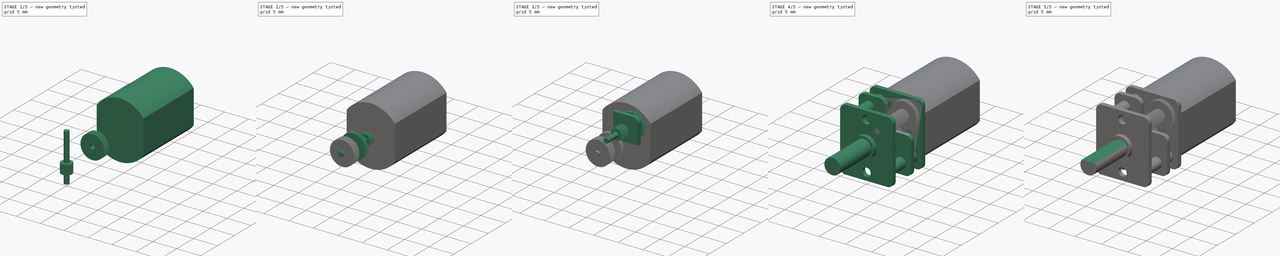
[diagram: build sequence overview — one tinted view per stage of 5, left to right]
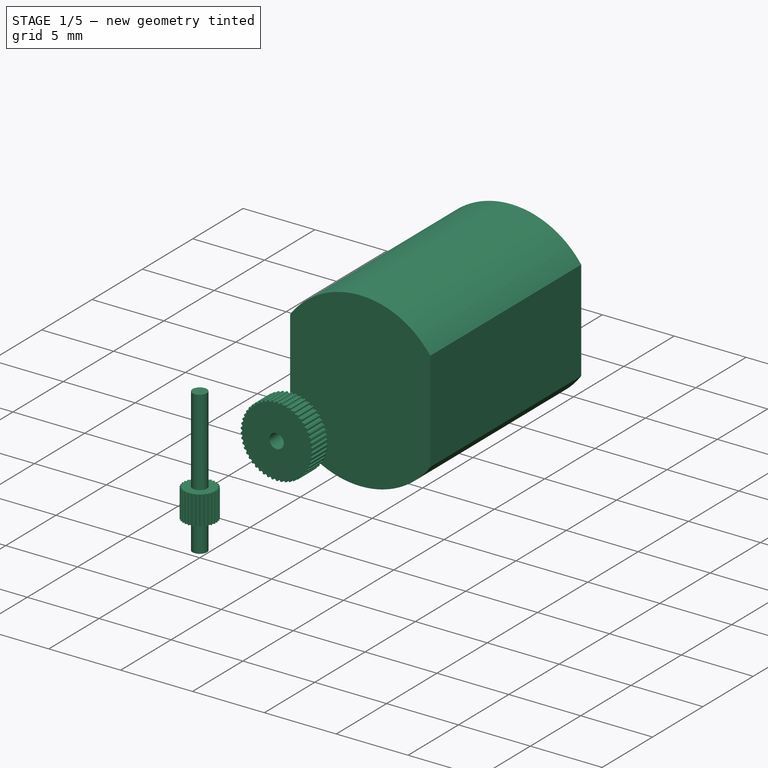
[diagram: stage 1 of 5 — iso view after this stage's code; geometry added in this stage tinted green]
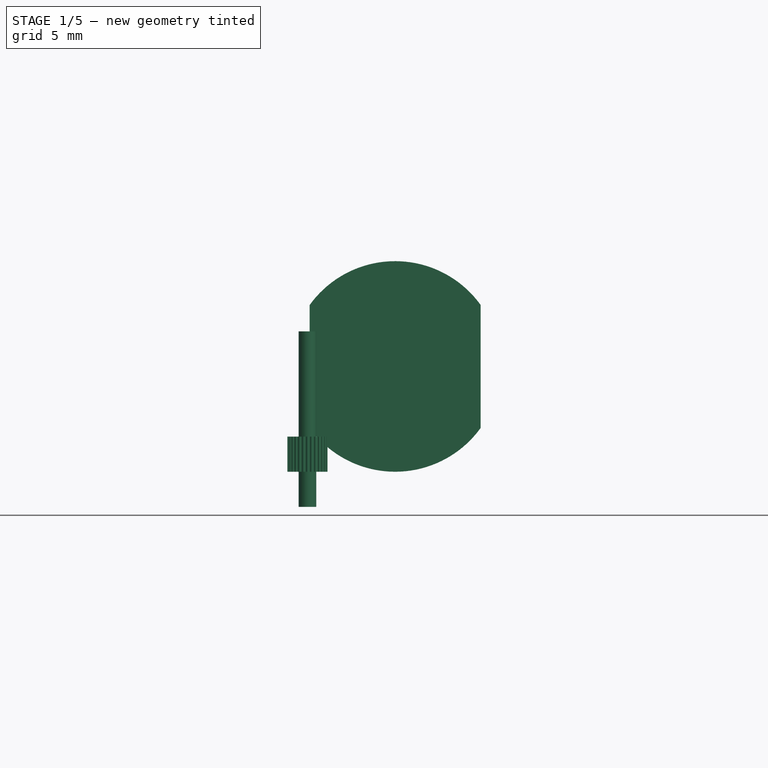
[diagram: stage 1 of 5 — front view after this stage's code; geometry added in this stage tinted green]
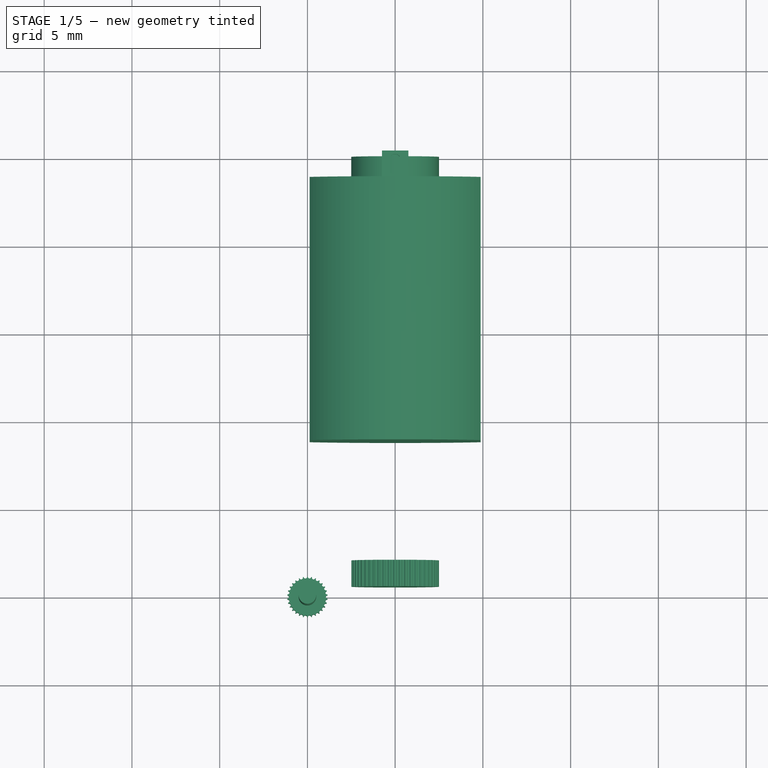
[diagram: stage 1 of 5 — top view after this stage's code; geometry added in this stage tinted green]
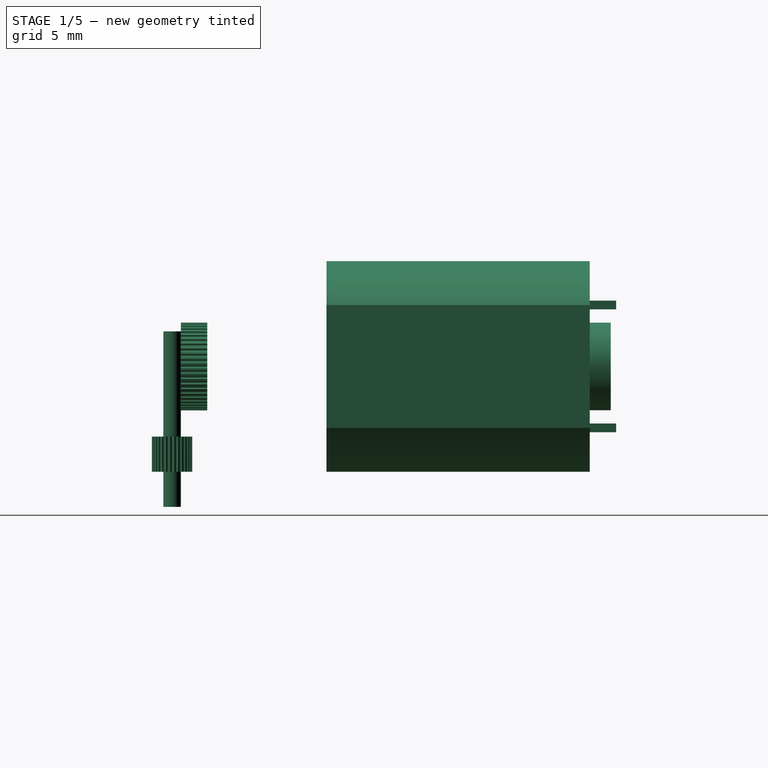
[diagram: stage 1 of 5 — right view after this stage's code; geometry added in this stage tinted green]
FCSTD DOCUMENT  (FreeCAD 0.14R3700 (Git))
Label: MotorMiniatura
License: CC-BY 3.0
LicenseURL: http://creativecommons.org/licenses/by/3.0/
objects: Part::Cylinder×30, Part::Cut×17, Sketcher::SketchObject×10, Part::MultiFuse×8, Part::FeaturePython×8, PartDesign::Pocket×6, Part::Fillet×5, Part::Box×4, PartDesign::Pad×4
note: 102 computed .brp shape members not serialized (recipe doc carries the construction recipe); baked Part::Feature solids carry a one-line shape summary decoded from their .brp

FEATURE [Part::Cylinder] Cylinder021  label="Cilindro021"
  Angle = 360
  Height = 2
  Radius = 1.15
FEATURE [Part::Cylinder] Cylinder022  label="Cilindro022"
  Angle = 360
  Height = 10
  Placement = pos=(1.15,0,0) rot=(0,0,1;0rad)
  Radius = 0.1
FEATURE [Part::FeaturePython] Array004  # Draft array (typed FeaturePython)
  Angle = 360
  ArrayType = 1
  Axis = (0,0,1)
  Base = -> Cylinder022
  Center = (0,0,0)
  IntervalX = (1,0,0)
  IntervalY = (0,1,0)
  IntervalZ = (0,0,1)
  NumberPolar = 30
  NumberX = 2
  NumberY = 2
  NumberZ = 1
FEATURE [Part::Cut] Cut009
  Base = -> Cylinder021
  Tool = -> Array004
FEATURE [Part::Cylinder] Cylinder023  label="Cilindro023"
  Angle = 360
  Height = 10
  Placement = pos=(0,0,-2) rot=(0,0,1;0rad)
  Radius = 0.5
FEATURE [Part::Cylinder] Cylinder024  label="Cilindro024"
  Angle = 360
  Height = 1.5
  Radius = 2.5
FEATURE [Part::Cylinder] Cylinder025  label="Cilindro025"
  Angle = 360
  Height = 10
  Placement = pos=(2.5,0,-2) rot=(0,0,1;0rad)
  Radius = 0.1
FEATURE [Part::FeaturePython] Array005  # Draft array (typed FeaturePython)
  Angle = 360
  ArrayType = 1
  Axis = (0,0,1)
  Base = -> Cylinder025
  Center = (0,0,0)
  IntervalX = (1,0,0)
  IntervalY = (0,1,0)
  IntervalZ = (0,0,1)
  NumberPolar = 50
  NumberX = 2
  NumberY = 2
  NumberZ = 1
FEATURE [Part::Cut] Cut011
  Base = -> Cylinder024
  Tool = -> Array005
FEATURE [Part::Cylinder] Cylinder026  label="Cilindro026"
  Angle = 360
  Height = 10
  Placement = pos=(0,0,-3) rot=(0,0,1;0rad)
  Radius = 0.5
FEATURE [Part::Cut] Cut012
  Base = -> Cut011
  Placement = pos=(5,2,6) rot=(1,0,0;1.5708rad)
  Tool = -> Cylinder026
FEATURE [Sketcher::SketchObject] Sketch005
  Placement = pos=(5,23.8,6) rot=(1,0,0;1.5708rad)
  sketch-geometry (4):
    g0: ArcOfCircle CenterX=0 CenterY=0 CenterZ=0 NormalX=0 NormalY=0 NormalZ=1 Radius=6 StartAngle=0.622827 EndAngle=2.51877
    g1: LineSegment StartX=4.8734 StartY=3.5 StartZ=0 EndX=4.8734 EndY=-3.5 EndZ=0
    g2: LineSegment StartX=-4.8734 StartY=-3.5 StartZ=0 EndX=-4.8734 EndY=3.5 EndZ=0
    g3: ArcOfCircle CenterX=0 CenterY=0 CenterZ=0 NormalX=0 NormalY=0 NormalZ=1 Radius=6 StartAngle=3.76442 EndAngle=5.66036
  constraints (15):
    c: Coincident(g0,g-1)
    c: Radius(g0) = 6
    c: Vertical(g1)
    c: Vertical(g2)
    c: Coincident(g0,g1)
    c: Equal(g0,g3)
    c: Coincident(g0,g2)
    c: Coincident(g0,g3)
    c: PointOnObject(g2,g3)
    c: Coincident(g1,g3)
    c: Equal(g1,g2)
    c: DistanceY(g1) = -7
    c: Symmetric(g0,g1,g-1)
    c: Symmetric(g0,g0,g-2)
    c: Coincident(g3,g2)
FEATURE [PartDesign::Pad] Pad001
  Length = 15
  Length2 = 100
  Placement = pos=(5,23.8,6) rot=(1,0,0;1.5708rad)
  Sketch = -> Sketch005
  Type = 0
FEATURE [Sketcher::SketchObject] Sketch006
  Placement = pos=(5,23.8,6) rot=(-1,0,0;1.5708rad)
  Support = -> Pad001 [Face5]
  sketch-geometry (1):
    g0: Circle CenterX=0 CenterY=0 CenterZ=0 NormalX=0 NormalY=0 NormalZ=1 Radius=2.5
  constraints (2):
    c: Coincident(g0,g-1)
    c: Radius(g0) = 2.5
FEATURE [PartDesign::Pad] Pad002
  Length = 1.2
  Length2 = 100
  Placement = pos=(5,23.8,6) rot=(1,0,0;1.5708rad)
  Sketch = -> Sketch006
  Type = 0
FEATURE [Sketcher::SketchObject] Sketch007
  ExternalGeometry = -> [Pad002]
  Placement = pos=(5,23.8,6) rot=(-1,0,0;1.5708rad)
  Support = -> Pad002 [Face4]
  sketch-geometry (10):
    g0: LineSegment StartX=0.75 StartY=-3.75 StartZ=0 EndX=-0.75 EndY=-3.75 EndZ=0
    g1: LineSegment StartX=-0.75 StartY=-3.75 StartZ=0 EndX=-0.75 EndY=-3.25 EndZ=0
    g2: LineSegment StartX=-0.75 StartY=-3.25 StartZ=0 EndX=0.75 EndY=-3.25 EndZ=0
    g3: LineSegment StartX=0.75 StartY=-3.25 StartZ=0 EndX=0.75 EndY=-3.75 EndZ=0
    g4: LineSegment [constr] StartX=4.8734 StartY=-3.5 StartZ=0 EndX=-4.8734 EndY=-3.5 EndZ=0
    g5: LineSegment [constr] StartX=-4.8734 StartY=3.5 StartZ=0 EndX=4.8734 EndY=3.5 EndZ=0
    g6: LineSegment StartX=0.75 StartY=3.25 StartZ=0 EndX=-0.75 EndY=3.25 EndZ=0
    g7: LineSegment StartX=-0.75 StartY=3.25 StartZ=0 EndX=-0.75 EndY=3.75 EndZ=0
    g8: LineSegment StartX=-0.75 StartY=3.75 StartZ=0 EndX=0.75 EndY=3.75 EndZ=0
    g9: LineSegment StartX=0.75 StartY=3.75 StartZ=0 EndX=0.75 EndY=3.25 EndZ=0
  constraints (28):
    c: Coincident(g0,g1)
    c: Coincident(g1,g2)
    c: Coincident(g2,g3)
    c: Coincident(g3,g0)
    c: Horizontal(g0)
    c: Horizontal(g2)
    c: Vertical(g1)
    c: Vertical(g3)
    c: DistanceX(g0) = -1.5
    c: DistanceY(g3) = -0.5
    c: Coincident(g4,g-3)
    c: Coincident(g4,g-4)
    c: Symmetric(g1,g0,g4)
    c: DistanceX(g-1,g0) = 0.75
    c: Coincident(g5,g-4)
    c: Coincident(g5,g-3)
    c: Coincident(g6,g7)
    c: Coincident(g7,g8)
    c: Coincident(g8,g9)
    c: Coincident(g9,g6)
    c: Horizontal(g6)
    c: Horizontal(g8)
    c: Vertical(g7)
    c: Vertical(g9)
    c: DistanceX(g8) = 1.5
    c: DistanceY(g7) = 0.5
    c: Symmetric(g8,g6,g5)
    c: DistanceX(g-1,g6) = 0.75
FEATURE [PartDesign::Pad] Pad003
  Length = 1.5
  Length2 = 100
  Placement = pos=(5,23.8,6) rot=(1,0,0;1.5708rad)
  Sketch = -> Sketch007
  Type = 0
FEATURE [Sketcher::SketchObject] Sketch008
  ExternalGeometry = -> [Pad003]
  Placement = pos=(5,23.8,2.25) rot=(1,0,0;3.14159rad)
  Support = -> Pad003 [Face9]
  sketch-geometry (4):
    g0: ArcOfCircle CenterX=0 CenterY=-0.399988 CenterZ=0 NormalX=0 NormalY=0 NormalZ=1 Radius=0.3 StartAngle=6.28316 EndAngle=9.42478
    g1: ArcOfCircle CenterX=0 CenterY=-1 CenterZ=0 NormalX=0 NormalY=0 NormalZ=1 Radius=0.3 StartAngle=3.14159 EndAngle=6.28321
    g2: LineSegment StartX=-0.3 StartY=-0.399988 StartZ=0 EndX=-0.3 EndY=-1 EndZ=0
    g3: LineSegment StartX=0.3 StartY=-0.399994 StartZ=0 EndX=0.3 EndY=-0.999994 EndZ=0
  constraints (14):
    c: Tangent(g0,g2)
    c: Tangent(g0,g3)
    c: Tangent(g1,g2)
    c: Tangent(g1,g3)
    c: Coincident(g0,g3)
    c: Coincident(g0,g2)
    c: Coincident(g2,g1)
    c: Coincident(g3,g1)
    c: Vertical(g2)
    c: Equal(g0,g1)
    c: DistanceX(g1,g1) = 0.6
    c: DistanceY(g1,g-3) = -0.5
    c: DistanceX(g-1,g1) = -0.3
    c: DistanceY(g3) = -0.6
FEATURE [PartDesign::Pocket] Pocket005
  Length = 1
  Placement = pos=(5,23.8,6) rot=(1,0,0;1.5708rad)
  Sketch = -> Sketch008
  Type = 0
FEATURE [Sketcher::SketchObject] Sketch009
  ExternalGeometry = -> [Pocket005]
  Placement = pos=(5,23.8,9.75) rot=(0,0,1;3.14159rad)
  Support = -> Pocket005 [Face15]
  sketch-geometry (4):
    g0: ArcOfCircle CenterX=-1e-12 CenterY=-0.399997 CenterZ=0 NormalX=0 NormalY=0 NormalZ=1 Radius=0.3 StartAngle=3.6196e-08 EndAngle=3.1416
    g1: ArcOfCircle CenterX=0 CenterY=-0.999997 CenterZ=0 NormalX=0 NormalY=0 NormalZ=1 Radius=0.3 StartAngle=3.1416 EndAngle=6.28319
    g2: LineSegment StartX=-0.3 StartY=-0.4 StartZ=0 EndX=-0.3 EndY=-1 EndZ=0
    g3: LineSegment StartX=0.3 StartY=-0.399997 StartZ=0 EndX=0.3 EndY=-0.999997 EndZ=0
  constraints (14):
    c: Tangent(g0,g3)
    c: Tangent(g1,g2)
    c: Tangent(g1,g3)
    c: Coincident(g0,g3)
    c: Coincident(g0,g2)
    c: Coincident(g2,g1)
    c: Coincident(g3,g1)
    c: Vertical(g2)
    c: Equal(g0,g1)
    c: DistanceY(g3) = -0.6
    c: DistanceX(g1,g1) = 0.6
    c: DistanceX(g-1,g1) = -0.3
    c: DistanceY(g1,g-3) = -0.5
    c: Equal(g2,g3)
FEATURE [PartDesign::Pocket] Pocket006
  Length = 1
  Placement = pos=(5,23.8,6) rot=(1,0,0;1.5708rad)
  Sketch = -> Sketch009
  Type = 0
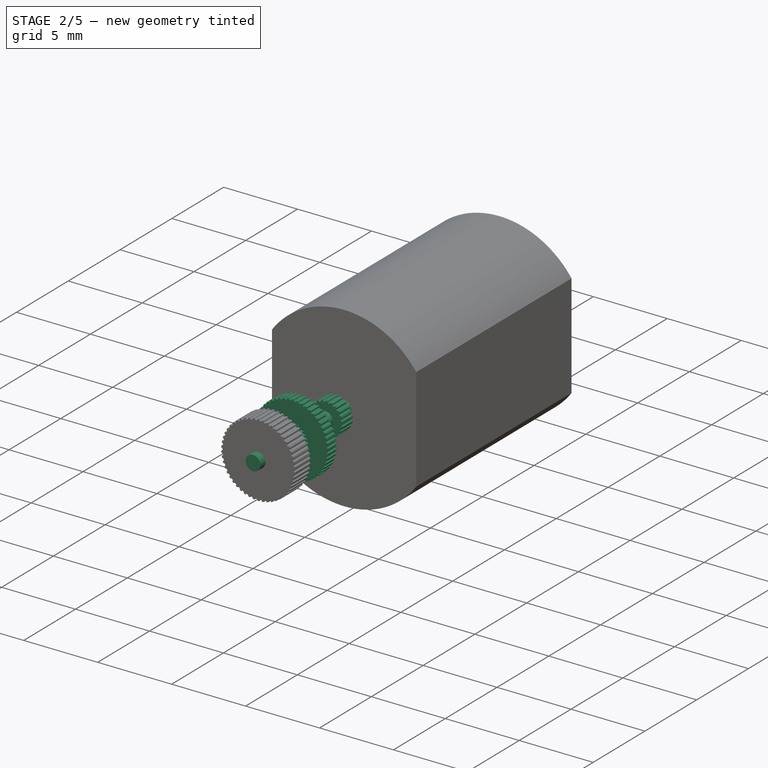
[diagram: stage 2 of 5 — iso view after this stage's code; geometry added in this stage tinted green]
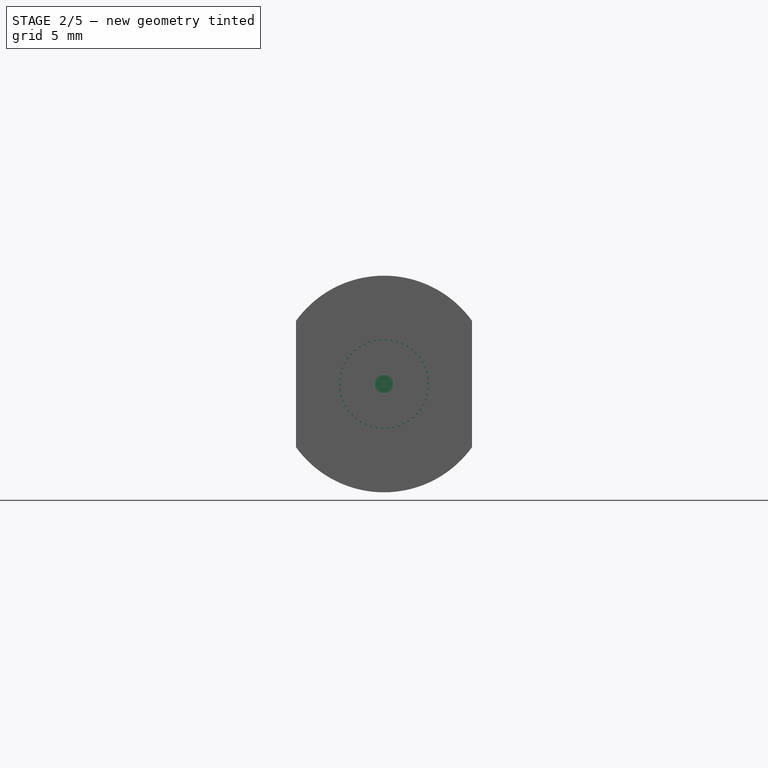
[diagram: stage 2 of 5 — front view after this stage's code; geometry added in this stage tinted green]
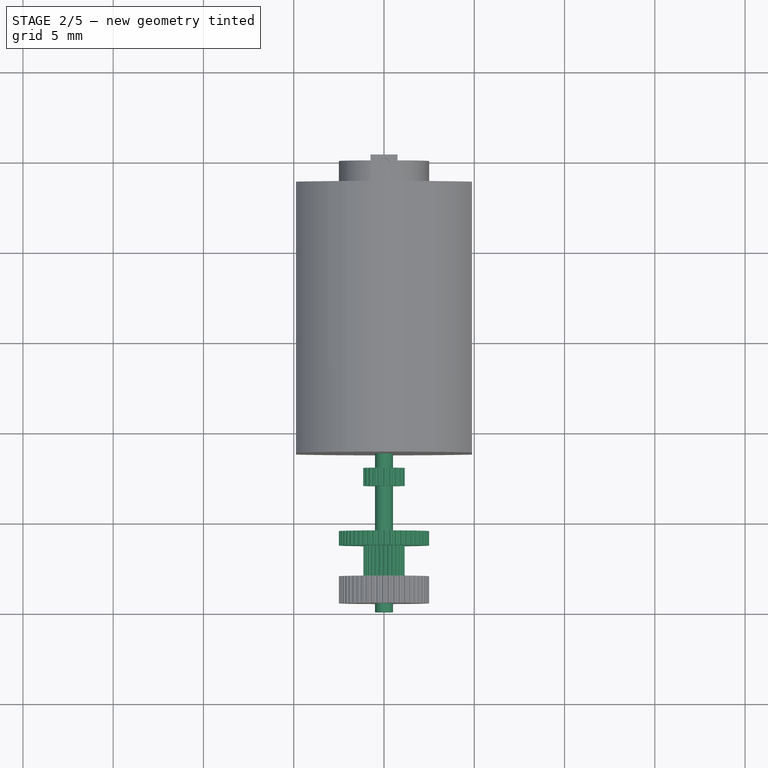
[diagram: stage 2 of 5 — top view after this stage's code; geometry added in this stage tinted green]
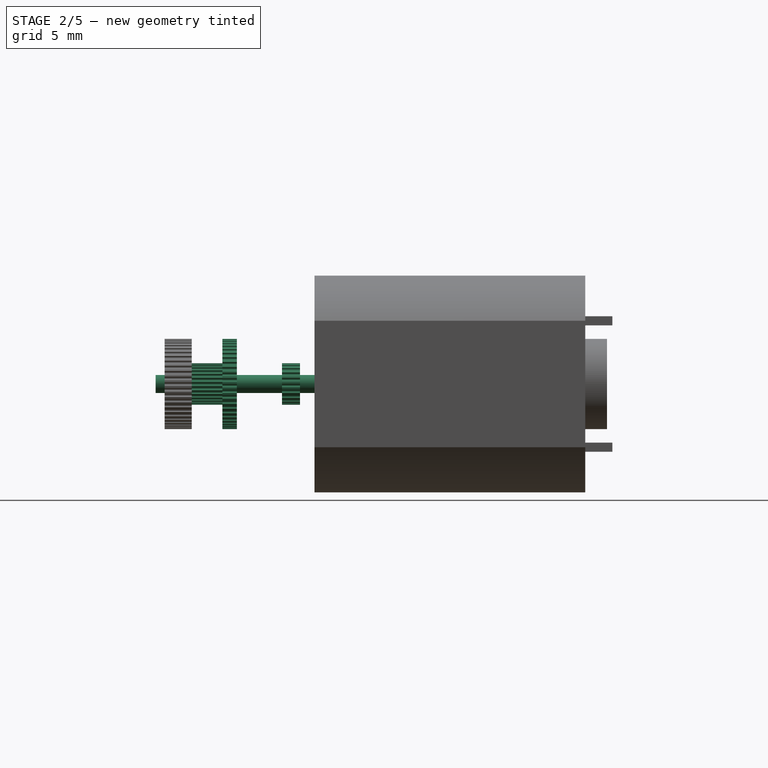
[diagram: stage 2 of 5 — right view after this stage's code; geometry added in this stage tinted green]
FEATURE [Part::Cylinder] Cylinder014  label="Cilindro014"
  Angle = 360
  Height = 8.8
  Placement = pos=(5,8.8,6) rot=(1,0,0;1.5708rad)
  Radius = 0.5
FEATURE [Part::Cylinder] Cylinder015  label="Cilindro015"
  Angle = 360
  Height = 1
  Radius = 1.15
FEATURE [Part::Cylinder] Cylinder016  label="Cilindro016"
  Angle = 360
  Height = 2
  Placement = pos=(1.15,0,0) rot=(0,0,1;0.174533rad)
  Radius = 0.1
FEATURE [Part::FeaturePython] Array002  # Draft array (typed FeaturePython)
  Angle = 360
  ArrayType = 1
  Axis = (0,0,1)
  Base = -> Cylinder016
  Center = (0,0,0)
  IntervalX = (1,0,0)
  IntervalY = (0,1,0)
  IntervalZ = (0,0,1)
  NumberPolar = 22
  NumberX = 2
  NumberY = 2
  NumberZ = 1
FEATURE [Part::Cut] Cut005
  Base = -> Cylinder015
  Tool = -> Array002
FEATURE [Part::Cylinder] Cylinder017  label="Cilindro017"
  Angle = 360
  Height = 10
  Placement = pos=(0,0,-3) rot=(0,0,1;0rad)
  Radius = 0.5
FEATURE [Part::Cut] Cut006
  Base = -> Cut005
  Placement = pos=(5,8,6) rot=(0.998783,0.034878,-0.034878;1.57201rad)
  Tool = -> Cylinder017
FEATURE [Part::MultiFuse] Fusion003  label="engranaje02"
  Shapes = -> [Cut006,Cylinder014]
FEATURE [Part::Cylinder] Cylinder018  label="Cilindro018"
  Angle = 360
  Height = 0.8
  Radius = 2.5
FEATURE [Part::Cylinder] Cylinder019  label="Cilindro019"
  Angle = 360
  Height = 5
  Placement = pos=(2.5,0,0) rot=(0,0,1;0rad)
  Radius = 0.1
FEATURE [Part::FeaturePython] Array003  # Draft array (typed FeaturePython)
  Angle = 360
  ArrayType = 1
  Axis = (0,0,1)
  Base = -> Cylinder019
  Center = (0,0,0)
  IntervalX = (1,0,0)
  IntervalY = (0,1,0)
  IntervalZ = (0,0,1)
  NumberPolar = 50
  NumberX = 2
  NumberY = 2
  NumberZ = 1
FEATURE [Part::Cut] Cut007
  Base = -> Cylinder018
  Tool = -> Array003
FEATURE [Part::Cylinder] Cylinder020  label="Cilindro020"
  Angle = 360
  Height = 10
  Placement = pos=(0,0,-3) rot=(0,0,1;0rad)
  Radius = 0.5
FEATURE [Part::Cut] Cut008
  Base = -> Cut007
  Placement = pos=(5,4.5,6) rot=(0.999695,0.01745,-0.01745;1.5711rad)
  Tool = -> Cylinder020
FEATURE [Part::Cut] Cut010
  Base = -> Cut009
  Placement = pos=(5,4,6) rot=(1,0,0;1.5708rad)
  Tool = -> Cylinder023
FEATURE [Part::MultiFuse] Fusion004
  Shapes = -> [Cut008,Cut010]
FEATURE [Part::MultiFuse] Fusion005  label="engranaje03"
  Shapes = -> [Fusion004,Cut012]
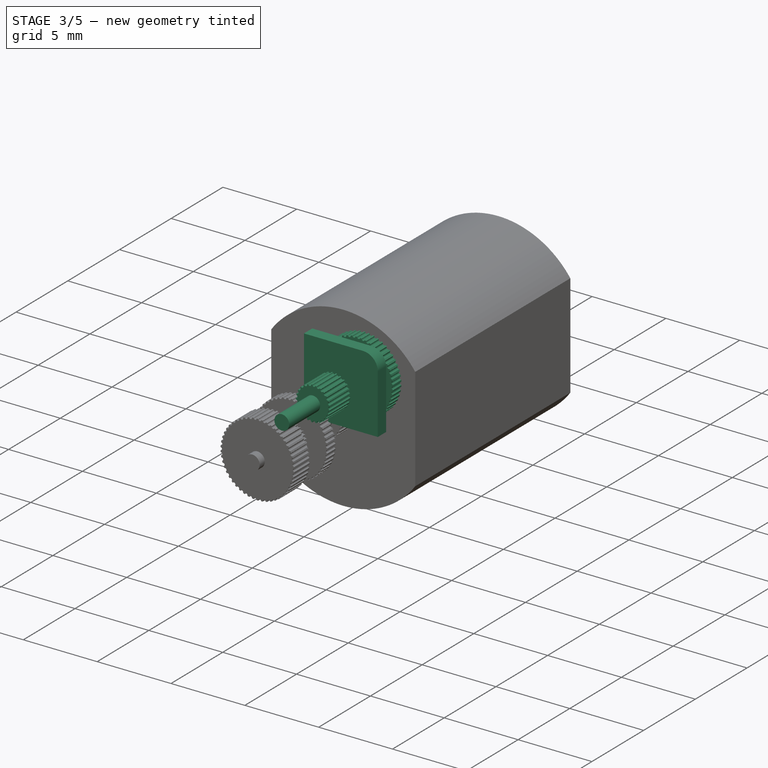
[diagram: stage 3 of 5 — iso view after this stage's code; geometry added in this stage tinted green]
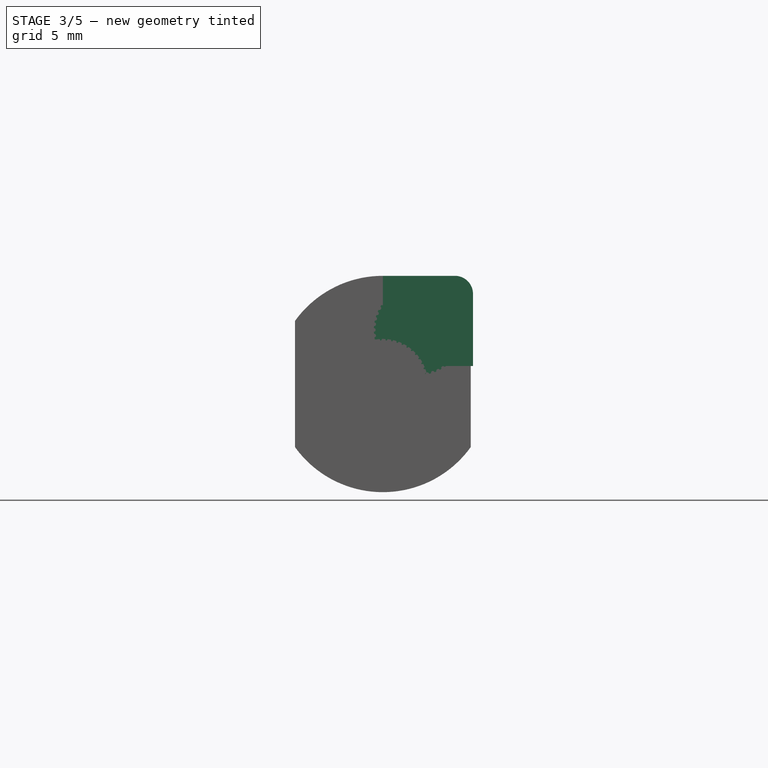
[diagram: stage 3 of 5 — front view after this stage's code; geometry added in this stage tinted green]
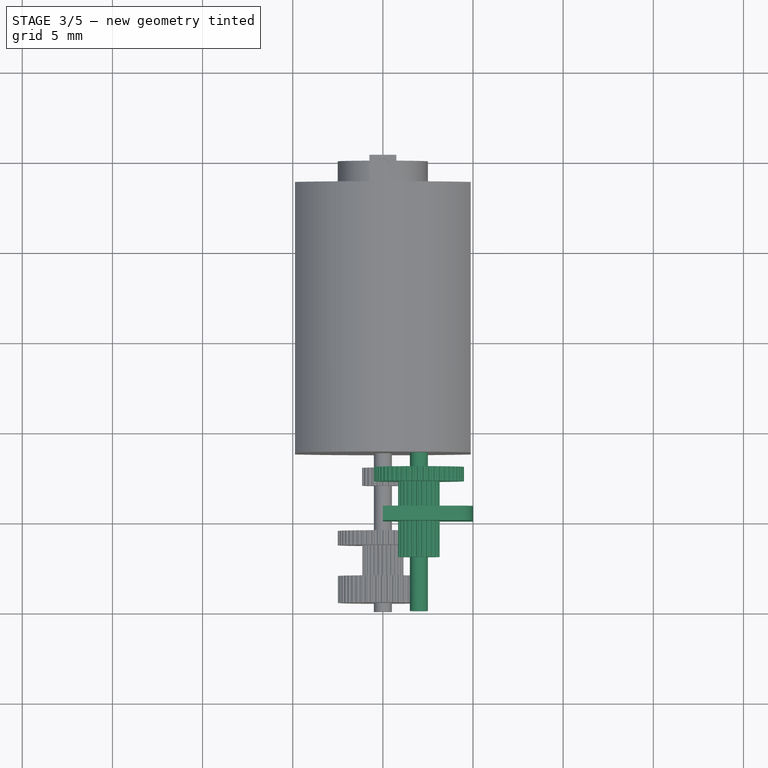
[diagram: stage 3 of 5 — top view after this stage's code; geometry added in this stage tinted green]
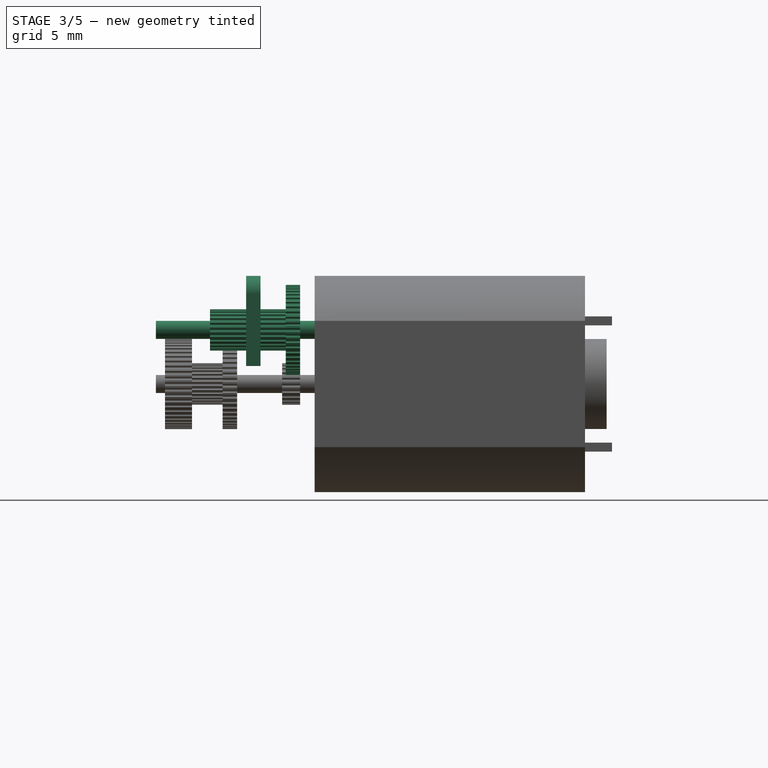
[diagram: stage 3 of 5 — right view after this stage's code; geometry added in this stage tinted green]
FEATURE [Part::Cylinder] Cylinder008  label="Cilindro008"
  Angle = 360
  Height = 0.8
  Radius = 2.5
FEATURE [Part::Cylinder] Cylinder009  label="Cilindro009"
  Angle = 360
  Height = 10
  Placement = pos=(2.5,0,-5) rot=(0,0,1;0rad)
  Radius = 0.1
FEATURE [Part::FeaturePython] Array  # Draft array (typed FeaturePython)
  Angle = 360
  ArrayType = 1
  Axis = (0,0,1)
  Base = -> Cylinder009
  Center = (0,0,0)
  IntervalX = (1,0,0)
  IntervalY = (0,1,0)
  IntervalZ = (0,0,1)
  NumberPolar = 50
  NumberX = 1
  NumberY = 1
  NumberZ = 1
FEATURE [Part::Cut] Cut
  Base = -> Cylinder008
  Tool = -> Array
FEATURE [Sketcher::SketchObject] Sketch004
  Placement = pos=(0,0,0.8) rot=(0,0,1;0rad)
  Support = -> Cut [Face3]
  sketch-geometry (1):
    g0: Circle CenterX=0 CenterY=0 CenterZ=0 NormalX=0 NormalY=0 NormalZ=1 Radius=0.5
  constraints (2):
    c: Coincident(g0,g-1)
    c: Radius(g0) = 0.5
FEATURE [PartDesign::Pocket] Pocket004
  Length = 5
  Sketch = -> Sketch004
  Type = 0
FEATURE [Part::Cylinder] Cylinder010  label="Cilindro010"
  Angle = 360
  Height = 5
  Radius = 1.15
FEATURE [Part::Cylinder] Cylinder011  label="Cilindro011"
  Angle = 360
  Height = 10
  Placement = pos=(0,0,-3) rot=(0,0,1;0rad)
  Radius = 0.5
FEATURE [Part::Cut] Cut001
  Base = -> Cylinder010
  Tool = -> Cylinder011
FEATURE [Part::Cylinder] Cylinder012  label="Cilindro012"
  Angle = 360
  Height = 10
  Placement = pos=(1.15,0,0) rot=(0,0,1;0rad)
  Radius = 0.1
FEATURE [Part::FeaturePython] Array001  # Draft array (typed FeaturePython)
  Angle = 360
  ArrayType = 1
  Axis = (0,0,1)
  Base = -> Cylinder012
  Center = (0,0,0)
  IntervalX = (1,0,0)
  IntervalY = (0,1,0)
  IntervalZ = (0,0,1)
  NumberPolar = 25
  NumberX = 2
  NumberY = 2
  NumberZ = 1
FEATURE [Part::Cut] Cut002
  Base = -> Cut001
  Tool = -> Array001
FEATURE [Part::MultiFuse] Fusion001
  Placement = pos=(7,8,9) rot=(1,0,0;1.5708rad)
  Shapes = -> [Pocket004,Cut002]
FEATURE [Part::Box] Box003  label="Cubo003"
  Height = 5
  Length = 5
  Placement = pos=(5,5,7) rot=(0,0,1;0rad)
  Width = 0.8
FEATURE [Part::Fillet] Fillet003
  Base = -> Box003
  Edges = 2 edges r=1: [Edge4,Edge6]
FEATURE [Part::Cylinder] Cylinder013  label="Cilindro013"
  Angle = 360
  Height = 8.8
  Placement = pos=(7,8.8,9) rot=(1,0,0;1.5708rad)
  Radius = 0.5
FEATURE [Part::MultiFuse] Fusion002  label="engranaje01"
  Shapes = -> [Fusion001,Cylinder013]
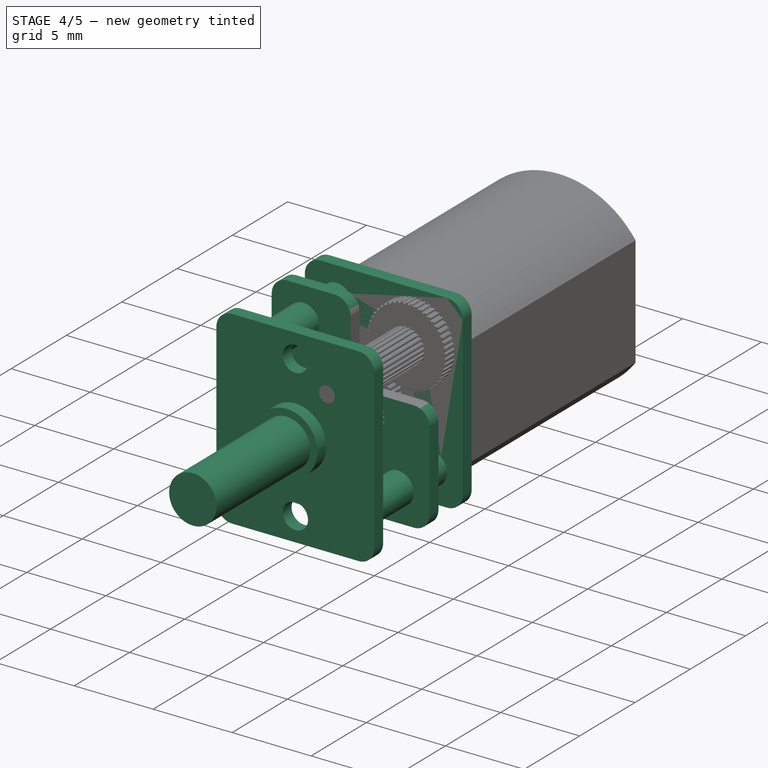
[diagram: stage 4 of 5 — iso view after this stage's code; geometry added in this stage tinted green]
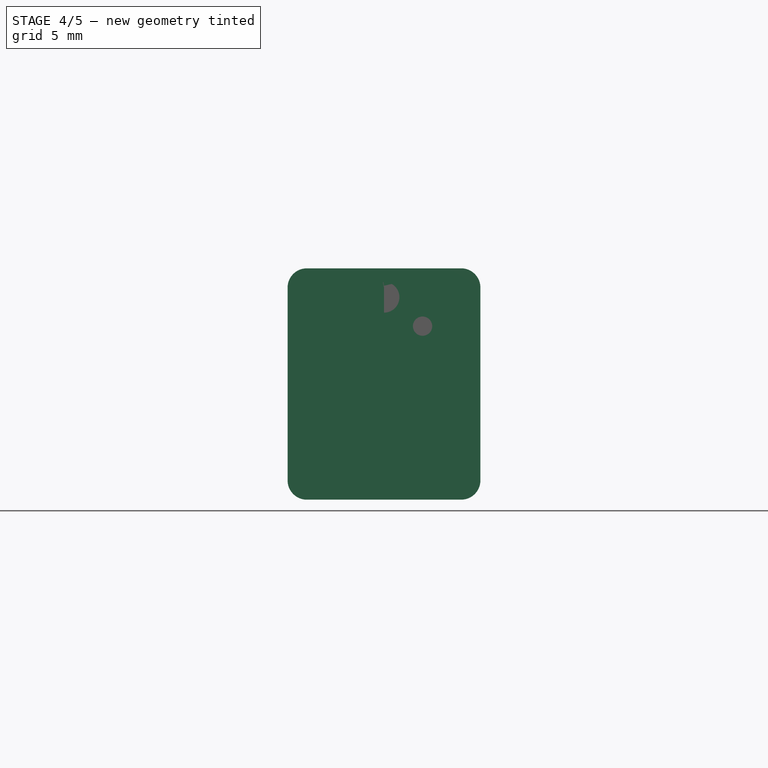
[diagram: stage 4 of 5 — front view after this stage's code; geometry added in this stage tinted green]
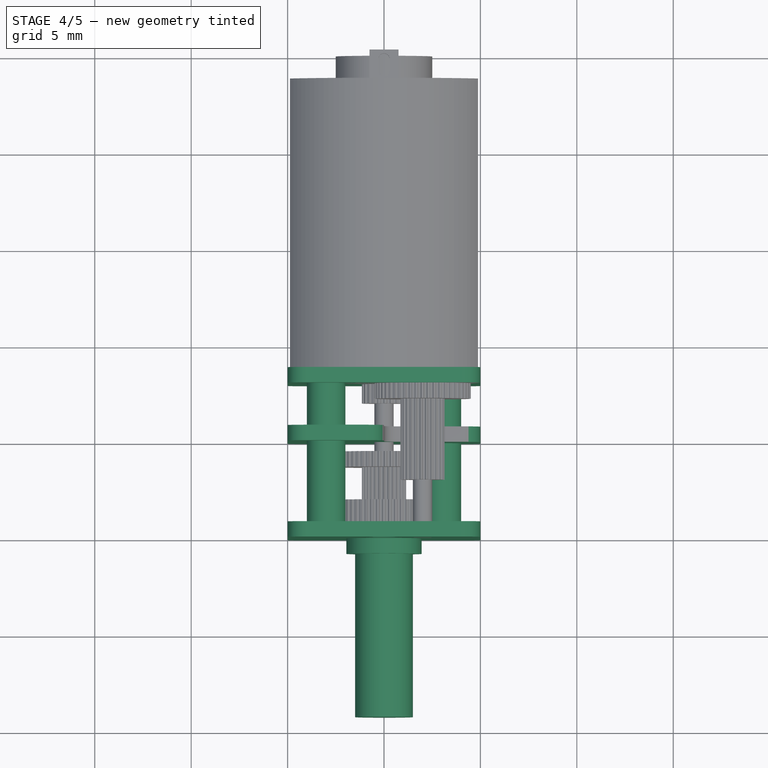
[diagram: stage 4 of 5 — top view after this stage's code; geometry added in this stage tinted green]
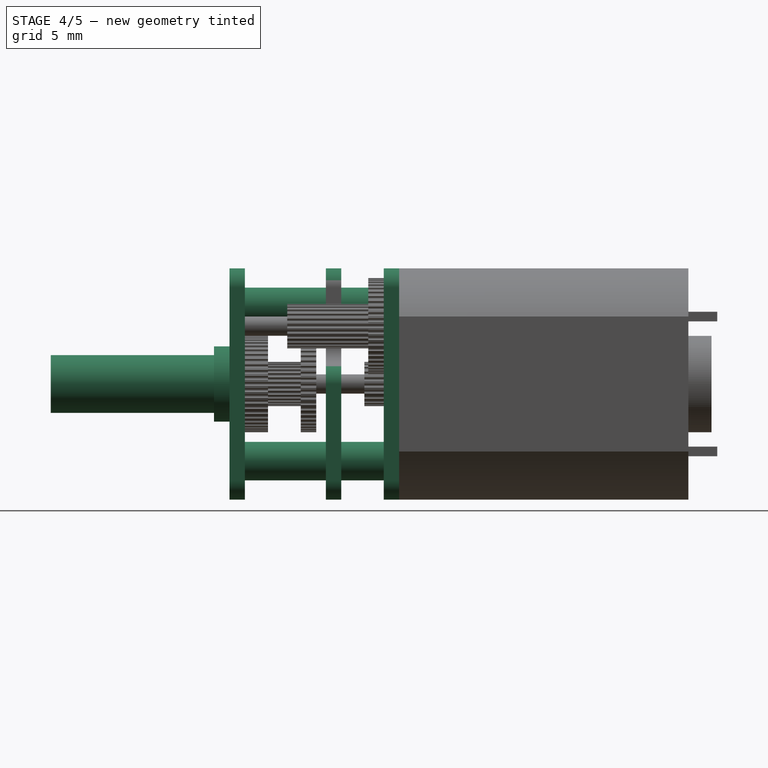
[diagram: stage 4 of 5 — right view after this stage's code; geometry added in this stage tinted green]
FEATURE [Part::Box] Box  label="Cubo"
  Height = 12
  Length = 10
  Width = 0.8
FEATURE [Part::Fillet] Fillet
  Base = -> Box
  Edges = 4 edges r=1: [Edge2,Edge4,Edge6,Edge8]
FEATURE [Sketcher::SketchObject] Sketch
  ExternalGeometry = -> [Fillet]
  Placement = pos=(0,0,0) rot=(1,0,0;1.5708rad)
  Support = -> Fillet [Face2]
  sketch-geometry (3):
    g0: LineSegment [constr] StartX=5 StartY=12 StartZ=0 EndX=5 EndY=0 EndZ=0
    g1: Circle CenterX=5 CenterY=10.5 CenterZ=0 NormalX=0 NormalY=0 NormalZ=1 Radius=0.8
    g2: Circle CenterX=5 CenterY=1.5 CenterZ=0 NormalX=0 NormalY=0 NormalZ=1 Radius=0.8
  constraints (10):
    c: PointOnObject(g0,g-3)
    c: PointOnObject(g0,g-1)
    c: Vertical(g0)
    c: PointOnObject(g1,g0)
    c: PointOnObject(g2,g0)
    c: Equal(g2,g1)
    c: Radius(g1) = 0.8
    c: DistanceY(g1,g-3) = 1.5
    c: DistanceY(g2,g-3) = 10.5
    c: DistanceX(g1,g-4) = 5
FEATURE [PartDesign::Pocket] Pocket
  Length = 5
  Sketch = -> Sketch
  Type = 1
FEATURE [Sketcher::SketchObject] Sketch001
  Placement = pos=(0,0,0) rot=(1,0,0;1.5708rad)
  Support = -> Pocket [Face2]
  sketch-geometry (2):
    g0: LineSegment [constr] StartX=5 StartY=10.5 StartZ=0 EndX=5 EndY=1.5 EndZ=0
    g1: Circle CenterX=5 CenterY=6 CenterZ=0 NormalX=0 NormalY=0 NormalZ=1 Radius=1.95
  constraints (3):
    c: PointOnObject(g1,g0)
    c: DistanceY(g1,g0) = 4.5
    c: Radius(g1) = 1.95
FEATURE [PartDesign::Pad] Pad
  Length = 0.8
  Length2 = 100
  Sketch = -> Sketch001
  Type = 0
FEATURE [Sketcher::SketchObject] Sketch002
  ExternalGeometry = -> [Pad]
  Placement = pos=(0,-0.8,0) rot=(1,0,0;1.5708rad)
  Support = -> Pad [Face14]
  sketch-geometry (1):
    g0: Circle CenterX=5 CenterY=6 CenterZ=0 NormalX=0 NormalY=0 NormalZ=1 Radius=1.5
  constraints (3):
    c: Radius(g0) = 1.5
    c: DistanceY(g0,g-3) = 6
    c: DistanceX(g0,g-4) = 5
FEATURE [Part::Cylinder] Cylinder  label="Cilindro"
  Angle = 360
  Height = 9.27
  Placement = pos=(5,0,6) rot=(1,0,0;1.5708rad)
  Radius = 1.5
FEATURE [Part::Box] Box001  label="Cubo001"
  Height = 12
  Length = 10
  Width = 0.8
FEATURE [Part::Fillet] Fillet001
  Base = -> Box001
  Edges = 4 edges r=1: [Edge2,Edge4,Edge6,Edge8]
  Placement = pos=(0,8,0) rot=(0,0,1;0rad)
FEATURE [Part::Box] Box002  label="Cubo002"
  Height = 12
  Length = 10
  Width = 0.8
FEATURE [Part::Fillet] Fillet002
  Base = -> Box002
  Edges = 4 edges r=1: [Edge2,Edge4,Edge6,Edge8]
  Placement = pos=(0,5,0) rot=(0,0,1;0rad)
FEATURE [PartDesign::Pocket] Pocket003
  Length = 5
  Sketch = -> Sketch002
  Type = 0
FEATURE [Part::Cylinder] Cylinder002  label="Cilindro002"
  Angle = 360
  Height = 11
  Placement = pos=(7,10,9) rot=(1,0,0;1.5708rad)
  Radius = 0.5
FEATURE [Part::Cylinder] Cylinder005  label="Cilindro005"
  Angle = 360
  Height = 8.8
  Placement = pos=(2,8.8,10) rot=(1,0,0;1.5708rad)
  Radius = 1
FEATURE [Part::Cylinder] Cylinder007  label="Cilindro007"
  Angle = 360
  Height = 8.8
  Placement = pos=(8,8.8,2) rot=(1,0,0;1.5708rad)
  Radius = 1
FEATURE [Part::MultiFuse] Fusion
  Shapes = -> [Fillet001,Fillet002,Pocket003,Cylinder005,Cylinder007]
FEATURE [Part::Cut] Cut003
  Base = -> Fusion
  Tool = -> Cylinder002
FEATURE [Part::Cut] Cut004
  Base = -> Cut003
  Tool = -> Fillet003
FEATURE [Part::Fillet] Fillet004
  Base = -> Cut004
  Edges = 2 edges r=1: [Edge56,Edge62]
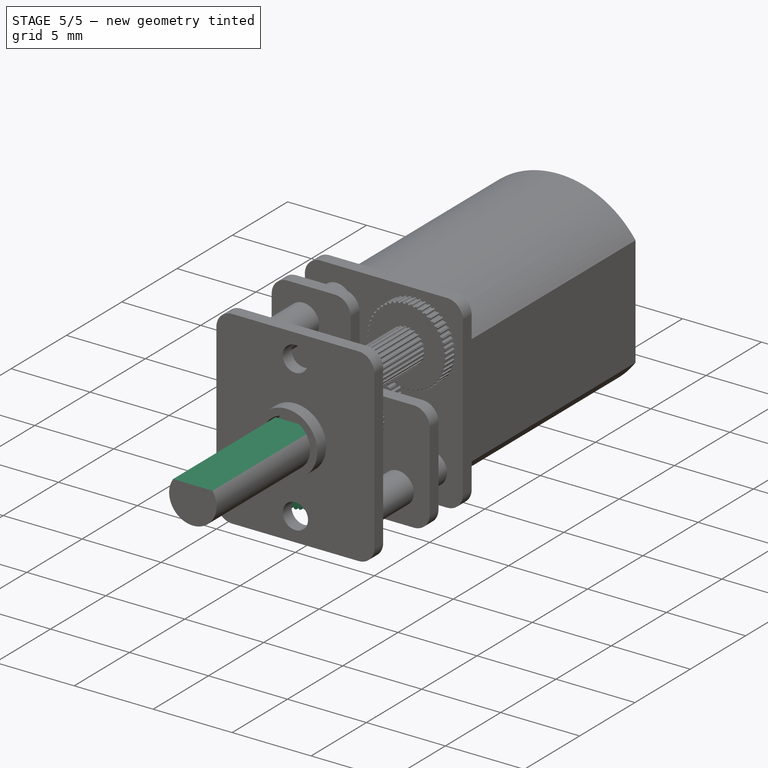
[diagram: stage 5 of 5 — iso view after this stage's code; geometry added in this stage tinted green]
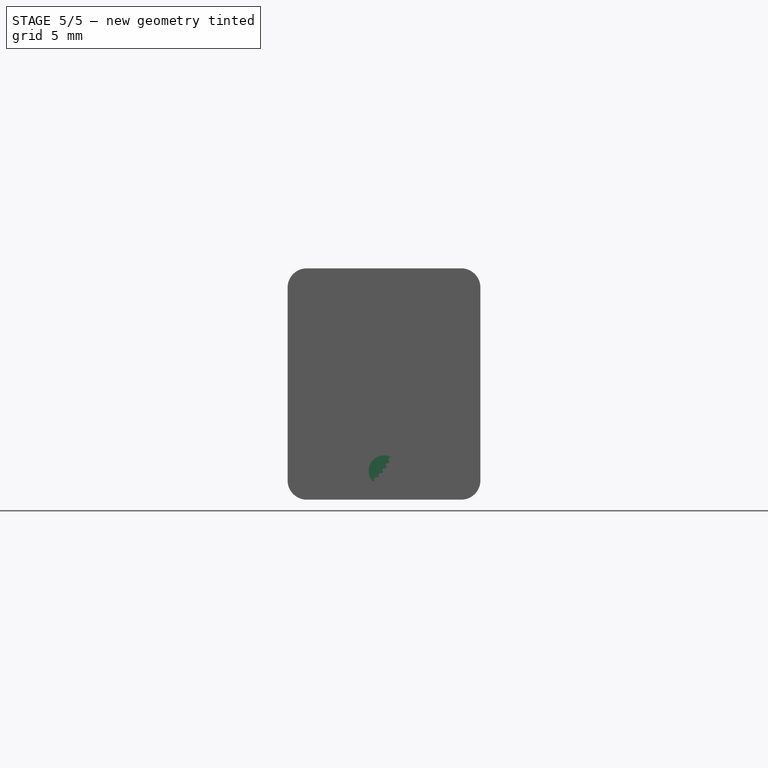
[diagram: stage 5 of 5 — front view after this stage's code; geometry added in this stage tinted green]
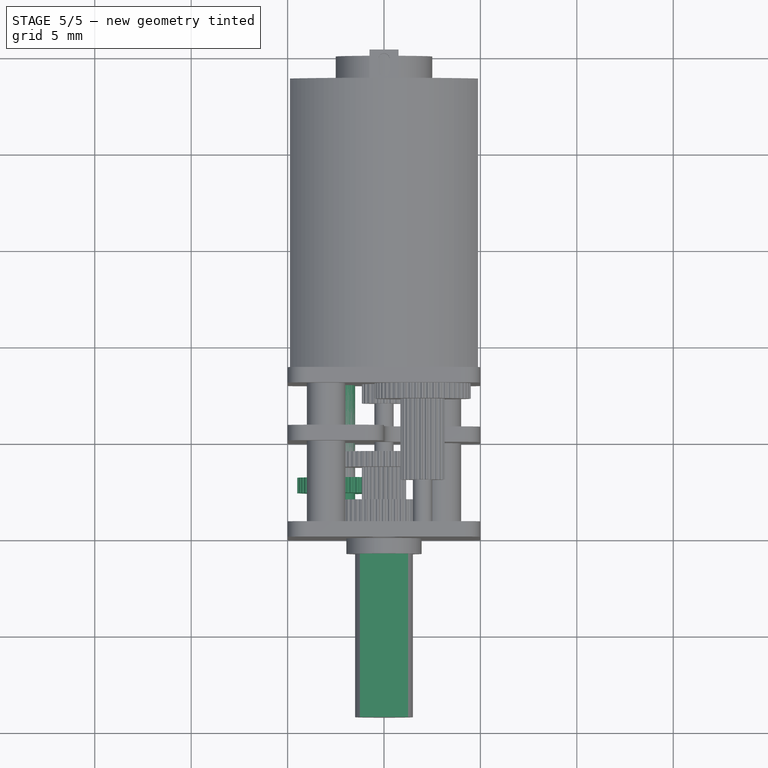
[diagram: stage 5 of 5 — top view after this stage's code; geometry added in this stage tinted green]
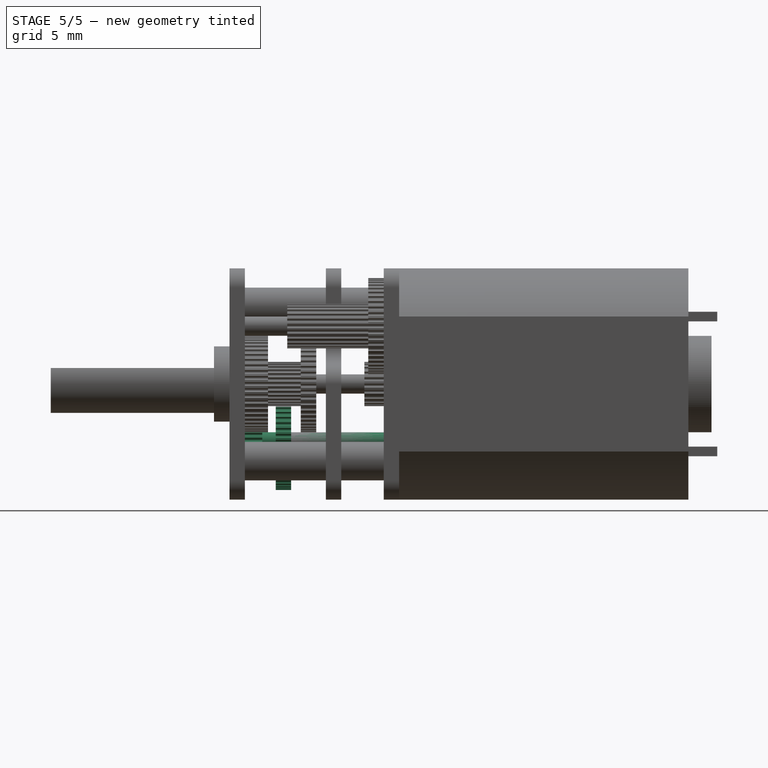
[diagram: stage 5 of 5 — right view after this stage's code; geometry added in this stage tinted green]
FEATURE [Sketcher::SketchObject] Sketch003
  Placement = pos=(5,-9.27,6) rot=(1,0,0;1.5708rad)
  Support = -> Cylinder [Face2]
  sketch-geometry (2):
    g0: ArcOfCircle CenterX=0 CenterY=0 CenterZ=0 NormalX=0 NormalY=0 NormalZ=1 Radius=1.5 StartAngle=0.585686 EndAngle=2.55591
    g1: LineSegment StartX=1.25 StartY=0.829156 StartZ=0 EndX=-1.25 EndY=0.829156 EndZ=0
  constraints (6):
    c: Coincident(g0,g-1)
    c: Radius(g0) = 1.5
    c: Horizontal(g1)
    c: Coincident(g0,g1)
    c: Coincident(g0,g1)
    c: DistanceX(g1) = -2.5
FEATURE [PartDesign::Pocket] Pocket002
  Length = 5
  Placement = pos=(5,0,6) rot=(1,0,0;1.5708rad)
  Sketch = -> Sketch003
  Type = 1
FEATURE [Part::Cylinder] Cylinder027  label="Cilindro027"
  Angle = 360
  Height = 8.8
  Placement = pos=(3,8.8,3) rot=(1,0,0;1.5708rad)
  Radius = 0.5
FEATURE [Part::Cylinder] Cylinder028  label="Cilindro028"
  Angle = 360
  Height = 0.8
  Radius = 2.5
FEATURE [Part::Cylinder] Cylinder029  label="Cilindro029"
  Angle = 360
  Height = 3
  Placement = pos=(2.5,0,-1) rot=(0,0,1;0rad)
  Radius = 0.1
FEATURE [Part::FeaturePython] Array006  # Draft array (typed FeaturePython)
  Angle = 360
  ArrayType = 1
  Axis = (0,0,1)
  Base = -> Cylinder029
  Center = (0,0,0)
  IntervalX = (1,0,0)
  IntervalY = (0,1,0)
  IntervalZ = (0,0,1)
  NumberPolar = 50
  NumberX = 2
  NumberY = 2
  NumberZ = 1
FEATURE [Part::Cut] Cut013
  Base = -> Cylinder028
  Tool = -> Array006
FEATURE [Part::Cylinder] Cylinder030  label="Cilindro030"
  Angle = 360
  Height = 10
  Placement = pos=(0,0,-2) rot=(0,0,1;0rad)
  Radius = 0.5
FEATURE [Part::Cut] Cut014
  Base = -> Cut013
  Placement = pos=(3,3.2,3) rot=(1,0,0;1.5708rad)
  Tool = -> Cylinder030
FEATURE [Part::Cylinder] Cylinder031  label="Cilindro031"
  Angle = 360
  Height = 1
  Radius = 1.15
FEATURE [Part::Cylinder] Cylinder032  label="Cilindro032"
  Angle = 360
  Height = 2
  Placement = pos=(1.15,0,0) rot=(0,0,1;0rad)
  Radius = 0.1
FEATURE [Part::FeaturePython] Array007  # Draft array (typed FeaturePython)
  Angle = 360
  ArrayType = 1
  Axis = (0,0,1)
  Base = -> Cylinder032
  Center = (0,0,0)
  IntervalX = (1,0,0)
  IntervalY = (0,1,0)
  IntervalZ = (0,0,1)
  NumberPolar = 26
  NumberX = 2
  NumberY = 2
  NumberZ = 1
FEATURE [Part::Cut] Cut015
  Base = -> Cylinder031
  Tool = -> Array007
FEATURE [Part::Cylinder] Cylinder033  label="Cilindro033"
  Angle = 360
  Height = 10
  Placement = pos=(0,0,-4) rot=(0,0,1;0rad)
  Radius = 0.5
FEATURE [Part::Cut] Cut016
  Base = -> Cut015
  Placement = pos=(3,1.7,3) rot=(0.657738,0.532626,-0.532626;1.978rad)
  Tool = -> Cylinder033
FEATURE [Part::MultiFuse] Fusion006
  Shapes = -> [Cylinder027,Cut014,Cut016]
FEATURE [Part::MultiFuse] Fusion007  label="motorMiniatura"
  Shapes = -> [Pocket002,Fillet004,Fusion002,Fusion003,Fusion005,Pocket006]
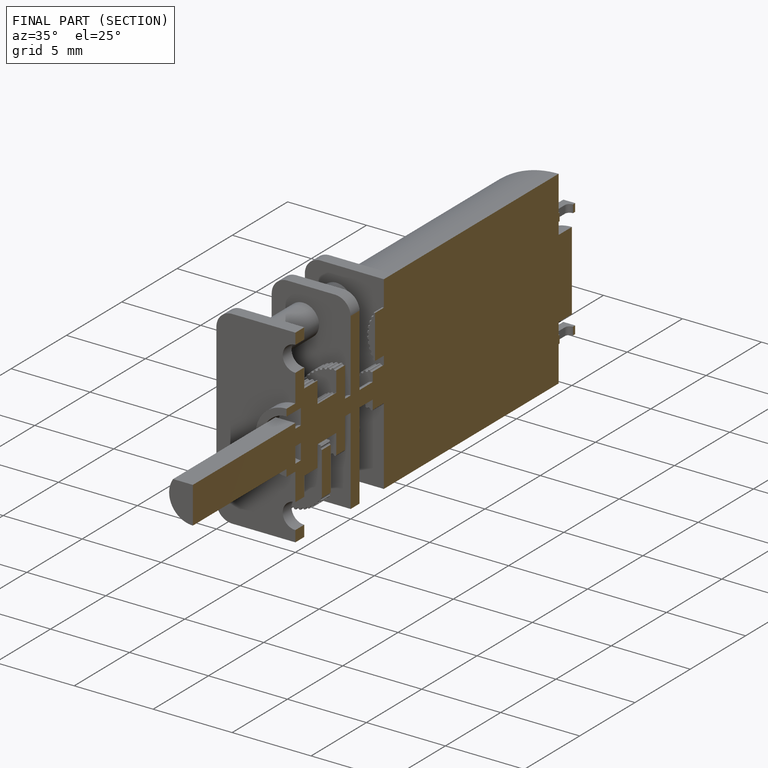
[diagram: finished part — half-section view (interior)]
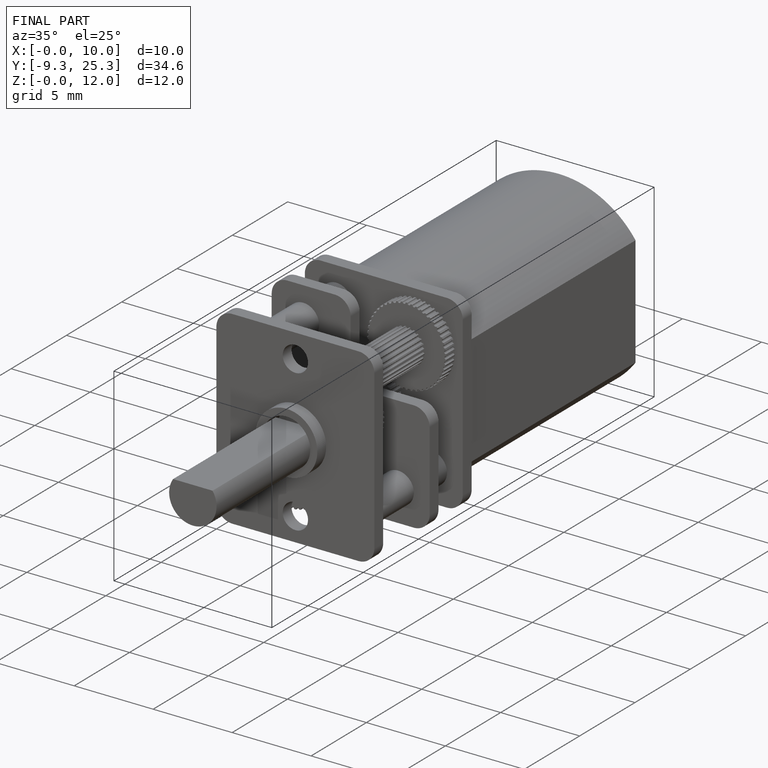
[diagram: finished part — iso view with bounding-box wireframe]
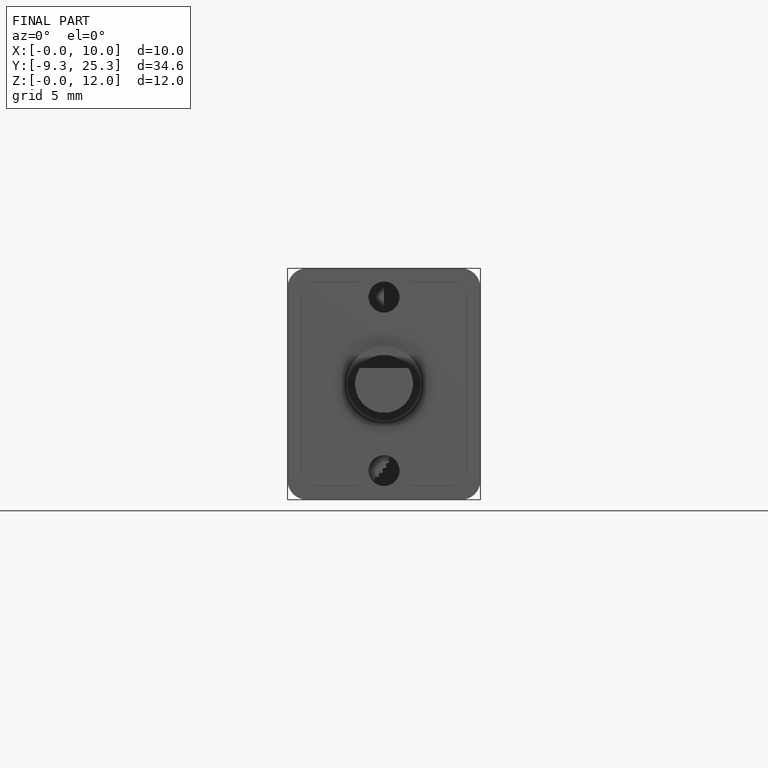
[diagram: finished part — front view with bounding-box wireframe]
